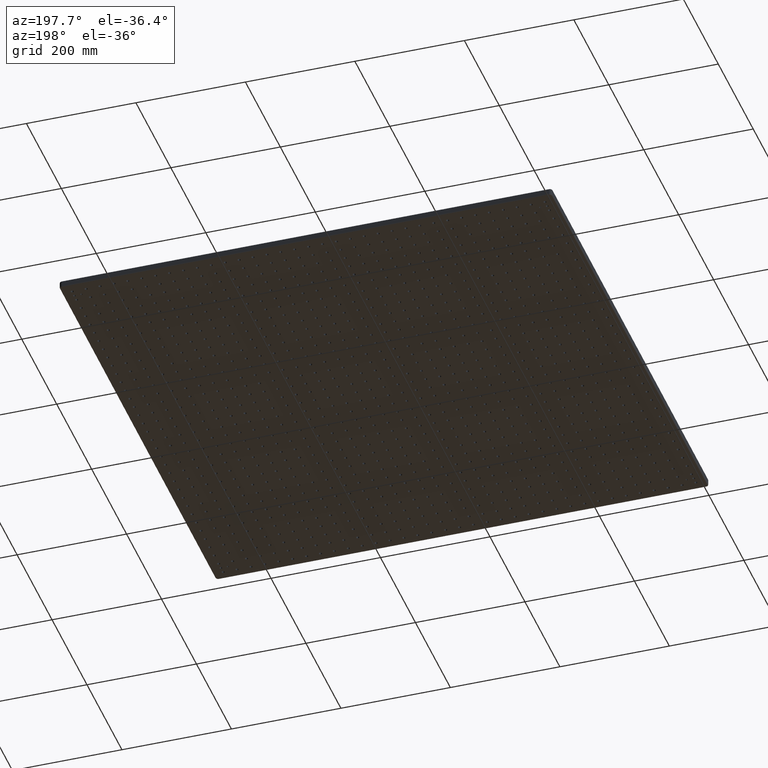
[diagram: clean part render]
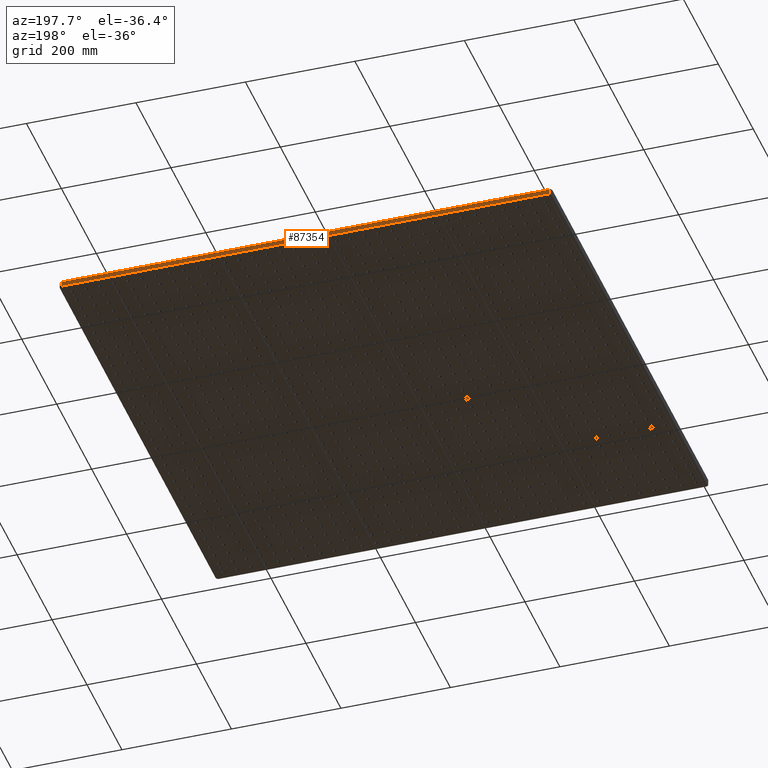
[diagram: same view with one face highlighted and labeled with its STEP entity id]
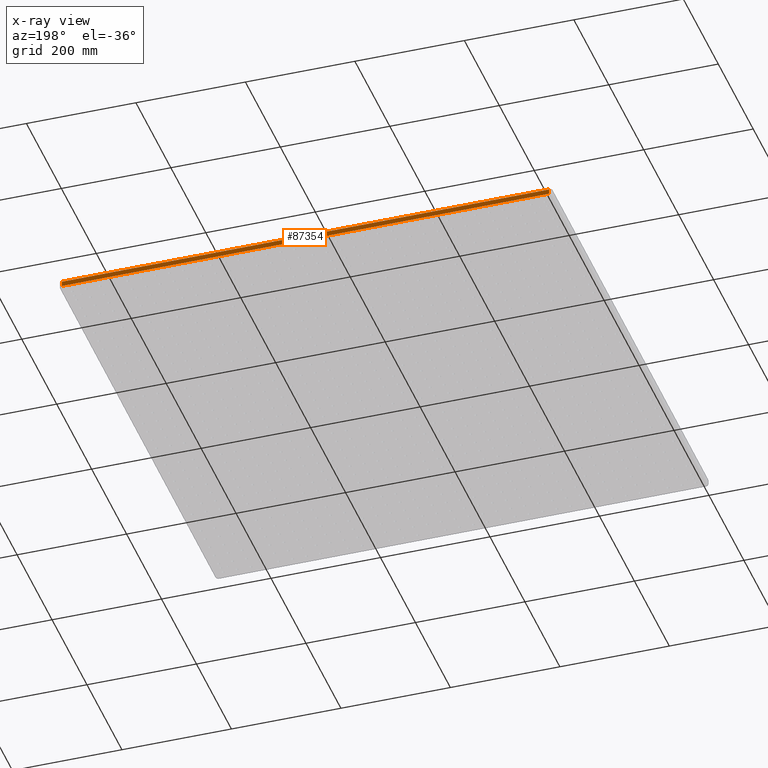
[diagram: x-ray of the same camera — body ghosted, the highlighted face saturated]
A machine part, auxiliary view. The second image highlights one B-rep face of the part: STEP entity #87354.
The next image is the same camera in x-ray: the body ghosted, the highlighted face saturated — about 0% of this face is hidden behind the body in this view.
In plain terms, the highlighted planar face has unit normal (0, 1, 0).
Its self-contained STEP definition (entity closure, byte-faithful):
#632 = DIRECTION ( 'NONE',  ( -1.000000000000000000, 0.0000000000000000000, 0.0000000000000000000 ) ) ;
#1999 = DIRECTION ( 'NONE',  ( 0.0000000000000000000, -0.0000000000000000000, 1.000000000000000000 ) ) ;
#3823 = CARTESIAN_POINT ( 'NONE',  ( 4.999999999999998200, 900.0000000000000000, -11.00000000000000000 ) ) ;
#6881 = VECTOR ( 'NONE', #61310, 1000.000000000000000 ) ;
#7932 = VERTEX_POINT ( 'NONE', #44943 ) ;
#10362 = DIRECTION ( 'NONE',  ( 1.000000000000000000, -0.0000000000000000000, 0.0000000000000000000 ) ) ;
#12895 = VERTEX_POINT ( 'NONE', #3823 ) ;
#15856 = EDGE_CURVE ( 'NONE', #45699, #7932, #69967, .T. ) ;
#18657 = AXIS2_PLACEMENT_3D ( 'NONE', #23129, #72922, #1999 ) ;
#18716 = LINE ( 'NONE', #44203, #32092 ) ;
#19195 = EDGE_CURVE ( 'NONE', #7932, #44594, #72594, .T. ) ;
#20863 = EDGE_LOOP ( 'NONE', ( #88066, #64886, #40006, #84370 ) ) ;
#23129 = CARTESIAN_POINT ( 'NONE',  ( 0.0000000000000000000, 900.0000000000000000, -13.00000000000000000 ) ) ;
#32092 = VECTOR ( 'NONE', #632, 1000.000000000000000 ) ;
#33582 = CARTESIAN_POINT ( 'NONE',  ( 895.0000000000000000, 900.0000000000000000, -13.00000000000000000 ) ) ;
#34768 = VECTOR ( 'NONE', #53930, 1000.000000000000000 ) ;
#35379 = CARTESIAN_POINT ( 'NONE',  ( 895.0000000000000000, 900.0000000000000000, -2.000000000000000000 ) ) ;
#35756 = FACE_OUTER_BOUND ( 'NONE', #20863, .T. ) ;
#36210 = CARTESIAN_POINT ( 'NONE',  ( 895.0000000000000000, 900.0000000000000000, -11.00000000000000000 ) ) ;
#40006 = ORIENTED_EDGE ( 'NONE', *, *, #81677, .T. ) ;
#44203 = CARTESIAN_POINT ( 'NONE',  ( 0.0000000000000000000, 900.0000000000000000, -11.00000000000000000 ) ) ;
#44594 = VERTEX_POINT ( 'NONE', #36210 ) ;
#44943 = CARTESIAN_POINT ( 'NONE',  ( 895.0000000000000000, 900.0000000000000000, -2.000000000000000000 ) ) ;
#45699 = VERTEX_POINT ( 'NONE', #75148 ) ;
#53742 = LINE ( 'NONE', #89896, #34768 ) ;
#53930 = DIRECTION ( 'NONE',  ( 0.0000000000000000000, -0.0000000000000000000, 1.000000000000000000 ) ) ;
#58958 = PLANE ( 'NONE',  #18657 ) ;
#61310 = DIRECTION ( 'NONE',  ( -0.0000000000000000000, 0.0000000000000000000, -1.000000000000000000 ) ) ;
#64886 = ORIENTED_EDGE ( 'NONE', *, *, #65774, .T. ) ;
#65774 = EDGE_CURVE ( 'NONE', #44594, #12895, #18716, .T. ) ;
#69967 = LINE ( 'NONE', #35379, #92236 ) ;
#72594 = LINE ( 'NONE', #33582, #6881 ) ;
#72922 = DIRECTION ( 'NONE',  ( 0.0000000000000000000, 1.000000000000000000, 0.0000000000000000000 ) ) ;
#75148 = CARTESIAN_POINT ( 'NONE',  ( 4.999999999999998200, 900.0000000000000000, -2.000000000000000000 ) ) ;
#81677 = EDGE_CURVE ( 'NONE', #12895, #45699, #53742, .T. ) ;
#84370 = ORIENTED_EDGE ( 'NONE', *, *, #15856, .T. ) ;
#87354 = ADVANCED_FACE ( 'NONE', ( #35756 ), #58958, .T. ) ;
#88066 = ORIENTED_EDGE ( 'NONE', *, *, #19195, .T. ) ;
#89896 = CARTESIAN_POINT ( 'NONE',  ( 4.999999999999998200, 900.0000000000000000, -13.00000000000000000 ) ) ;
#92236 = VECTOR ( 'NONE', #10362, 1000.000000000000000 ) ;